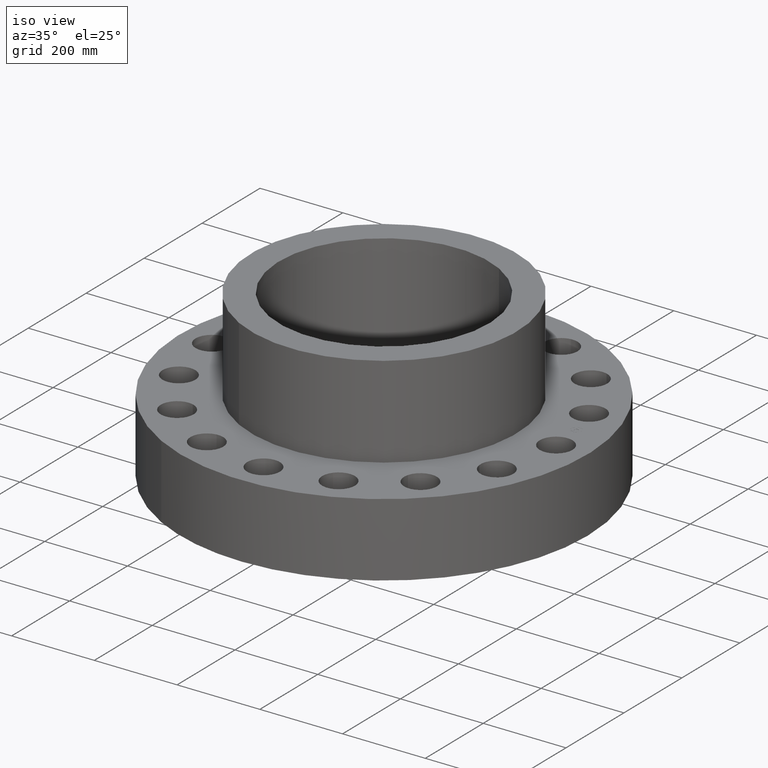
[diagram: clean part render]
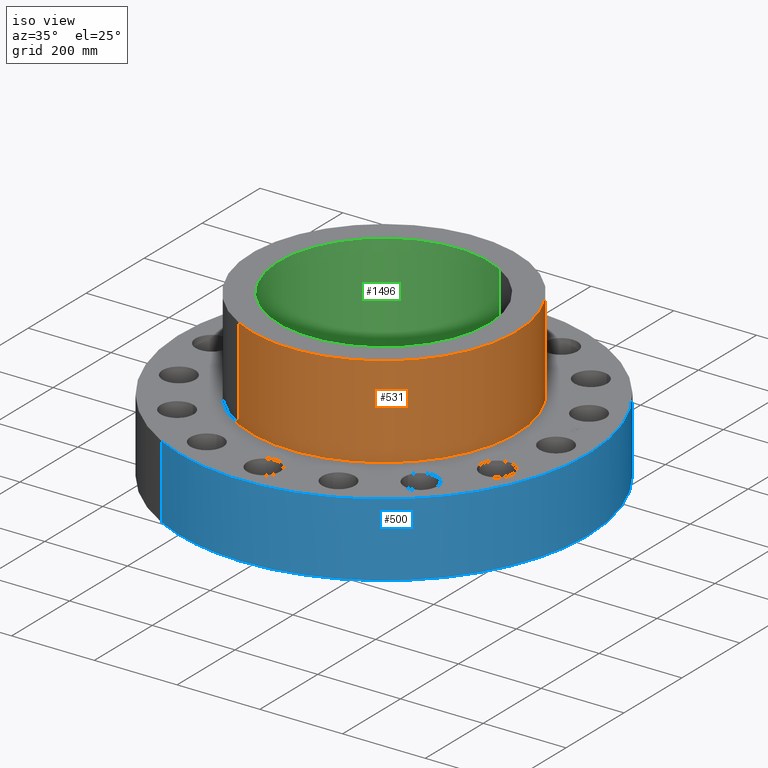
[diagram: same view with three faces highlighted in distinct colors, each labeled with its STEP entity id]
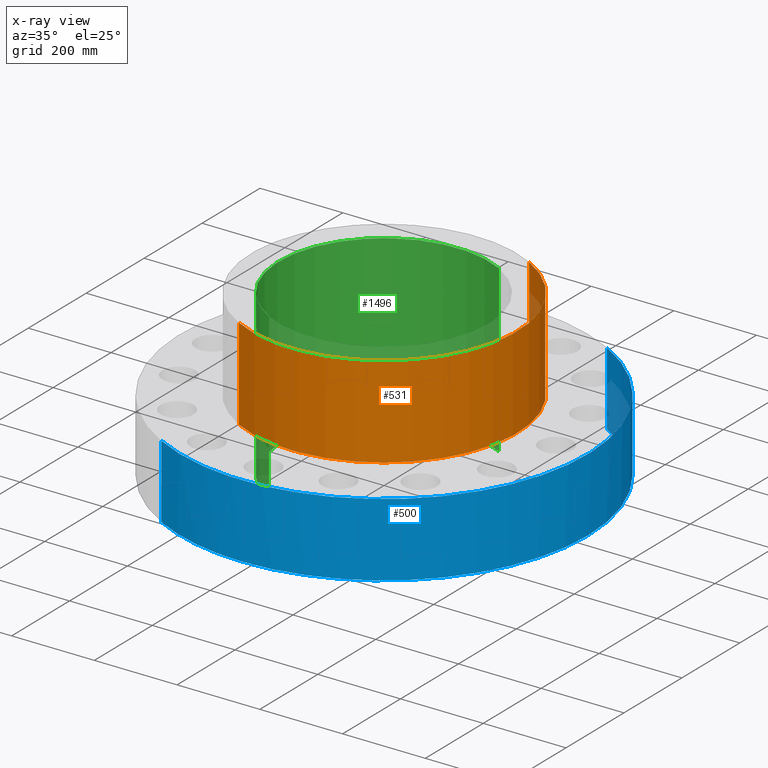
[diagram: x-ray of the same camera — body ghosted, the three highlighted faces saturated]
A machine part, iso view with three faces highlighted in distinct colors.
The next image is the same camera in x-ray (body ghosted, the three faces saturated) — at least one of them is partly hidden behind the body in this view.
Their STEP definitions:

[orange] entity #531 — the highlighted cylindrical surface (partial cylindrical patch) has radius 320.675 mm, axis along (0, 0, -1).
#130=AXIS2_PLACEMENT_3D('Circle Axis2P3D',#128,#129,$) ;
#504=AXIS2_PLACEMENT_3D('Cylinder Axis2P3D',#501,#502,#503) ;
#515=AXIS2_PLACEMENT_3D('Circle Axis2P3D',#513,#514,$) ;
#123=CARTESIAN_POINT('Vertex',(-6.0527474249,-11.0794798439,7.00000000003)) ;
#125=CARTESIAN_POINT('Vertex',(6.0527474249,11.0794798439,7.00000000003)) ;
#128=CARTESIAN_POINT('Axis2P3D Location',(0.,0.,7.00000000003)) ;
#501=CARTESIAN_POINT('Axis2P3D Location',(0.,0.,7.75000000003)) ;
#506=CARTESIAN_POINT('Line Origine',(6.0527474249,11.0794798439,11.375)) ;
#510=CARTESIAN_POINT('Vertex',(6.0527474249,11.0794798439,15.7500000001)) ;
#513=CARTESIAN_POINT('Axis2P3D Location',(0.,0.,15.7500000001)) ;
#517=CARTESIAN_POINT('Vertex',(-6.0527474249,-11.0794798439,15.7500000001)) ;
#520=CARTESIAN_POINT('Line Origine',(-6.0527474249,-11.0794798439,11.375)) ;
#129=DIRECTION('Axis2P3D Direction',(0.,0.,-0.0393700787402)) ;
#502=DIRECTION('Axis2P3D Direction',(0.,0.,-0.0393700787402)) ;
#503=DIRECTION('Axis2P3D XDirection',(-0.0188750212049,-0.0345504945626,0.)) ;
#507=DIRECTION('Vector Direction',(0.,0.,-0.0393700787402)) ;
#514=DIRECTION('Axis2P3D Direction',(0.,0.,-0.0393700787402)) ;
#521=DIRECTION('Vector Direction',(0.,0.,-0.0393700787402)) ;
#508=VECTOR('Line Direction',#507,0.0393700787402) ;
#522=VECTOR('Line Direction',#521,0.0393700787402) ;
#526=ORIENTED_EDGE('',*,*,#132,.F.) ;
#527=ORIENTED_EDGE('',*,*,#512,.T.) ;
#528=ORIENTED_EDGE('',*,*,#519,.T.) ;
#529=ORIENTED_EDGE('',*,*,#524,.F.) ;
#531=ADVANCED_FACE('PartBody',(#530),#505,.T.) ;
#131=CIRCLE('generated circle',#130,12.6250000001) ;
#516=CIRCLE('generated circle',#515,12.6250000001) ;
#505=CYLINDRICAL_SURFACE('generated cylinder',#504,12.6250000001) ;
#132=EDGE_CURVE('',#126,#124,#131,.T.) ;
#512=EDGE_CURVE('',#126,#511,#509,.F.) ;
#519=EDGE_CURVE('',#511,#518,#516,.T.) ;
#524=EDGE_CURVE('',#124,#518,#523,.F.) ;
#525=EDGE_LOOP('',(#526,#527,#528,#529)) ;
#530=FACE_OUTER_BOUND('',#525,.T.) ;
#509=LINE('Line',#506,#508) ;
#523=LINE('Line',#520,#522) ;
#124=VERTEX_POINT('',#123) ;
#126=VERTEX_POINT('',#125) ;
#511=VERTEX_POINT('',#510) ;
#518=VERTEX_POINT('',#517) ;

[blue] entity #500 — the highlighted cylindrical surface (partial cylindrical patch) has radius 492.125 mm, axis along (0, 0, -1).
#99=AXIS2_PLACEMENT_3D('Circle Axis2P3D',#97,#98,$) ;
#429=AXIS2_PLACEMENT_3D('Cylinder Axis2P3D',#426,#427,#428) ;
#475=AXIS2_PLACEMENT_3D('Circle Axis2P3D',#473,#474,$) ;
#482=AXIS2_PLACEMENT_3D('Circle Axis2P3D',#480,#481,$) ;
#489=AXIS2_PLACEMENT_3D('Circle Axis2P3D',#487,#488,$) ;
#97=CARTESIAN_POINT('Axis2P3D Location',(0.,0.,7.00000000003)) ;
#101=CARTESIAN_POINT('Vertex',(9.28886981049,17.0031621367,7.00000000003)) ;
#103=CARTESIAN_POINT('Vertex',(-9.28886981049,-17.0031621367,7.00000000003)) ;
#426=CARTESIAN_POINT('Axis2P3D Location',(0.,0.,7.75000000003)) ;
#437=CARTESIAN_POINT('Vertex',(9.28886981049,17.0031621367,2.23792987641E-015)) ;
#451=CARTESIAN_POINT('Vertex',(-9.28886981049,-17.0031621367,2.23792987641E-015)) ;
#454=CARTESIAN_POINT('Line Origine',(-9.28886981049,-17.0031621367,3.50000000001)) ;
#459=CARTESIAN_POINT('Line Origine',(9.28886981049,17.0031621367,3.50000000001)) ;
#473=CARTESIAN_POINT('Axis2P3D Location',(0.,0.,2.23792987641E-015)) ;
#477=CARTESIAN_POINT('Vertex',(2.26969476889E-014,-19.3750000001,0.)) ;
#480=CARTESIAN_POINT('Axis2P3D Location',(0.,0.,2.23792987641E-015)) ;
#484=CARTESIAN_POINT('Vertex',(19.3750000001,2.23792987641E-014,0.)) ;
#487=CARTESIAN_POINT('Axis2P3D Location',(0.,0.,2.23792987641E-015)) ;
#98=DIRECTION('Axis2P3D Direction',(0.,0.,-0.0393700787402)) ;
#427=DIRECTION('Axis2P3D Direction',(0.,0.,-0.0393700787402)) ;
#428=DIRECTION('Axis2P3D XDirection',(0.0188750212049,0.0345504945626,0.)) ;
#455=DIRECTION('Vector Direction',(0.,0.,-0.0393700787402)) ;
#460=DIRECTION('Vector Direction',(0.,0.,-0.0393700787402)) ;
#474=DIRECTION('Axis2P3D Direction',(0.,0.,-0.0393700787402)) ;
#481=DIRECTION('Axis2P3D Direction',(0.,0.,-0.0393700787402)) ;
#488=DIRECTION('Axis2P3D Direction',(0.,0.,-0.0393700787402)) ;
#456=VECTOR('Line Direction',#455,0.0393700787402) ;
#461=VECTOR('Line Direction',#460,0.0393700787402) ;
#493=ORIENTED_EDGE('',*,*,#479,.F.) ;
#494=ORIENTED_EDGE('',*,*,#486,.F.) ;
#495=ORIENTED_EDGE('',*,*,#491,.F.) ;
#496=ORIENTED_EDGE('',*,*,#463,.T.) ;
#497=ORIENTED_EDGE('',*,*,#105,.T.) ;
#498=ORIENTED_EDGE('',*,*,#458,.F.) ;
#500=ADVANCED_FACE('PartBody',(#499),#430,.T.) ;
#100=CIRCLE('generated circle',#99,19.3750000001) ;
#476=CIRCLE('generated circle',#475,19.3750000001) ;
#483=CIRCLE('generated circle',#482,19.3750000001) ;
#490=CIRCLE('generated circle',#489,19.3750000001) ;
#430=CYLINDRICAL_SURFACE('generated cylinder',#429,19.3750000001) ;
#105=EDGE_CURVE('',#102,#104,#100,.T.) ;
#458=EDGE_CURVE('',#452,#104,#457,.F.) ;
#463=EDGE_CURVE('',#438,#102,#462,.F.) ;
#479=EDGE_CURVE('',#478,#452,#476,.T.) ;
#486=EDGE_CURVE('',#485,#478,#483,.T.) ;
#491=EDGE_CURVE('',#438,#485,#490,.T.) ;
#492=EDGE_LOOP('',(#493,#494,#495,#496,#497,#498)) ;
#499=FACE_OUTER_BOUND('',#492,.T.) ;
#457=LINE('Line',#454,#456) ;
#462=LINE('Line',#459,#461) ;
#102=VERTEX_POINT('',#101) ;
#104=VERTEX_POINT('',#103) ;
#438=VERTEX_POINT('',#437) ;
#452=VERTEX_POINT('',#451) ;
#478=VERTEX_POINT('',#477) ;
#485=VERTEX_POINT('',#484) ;

[green] entity #1496 — the highlighted cylindrical surface (partial cylindrical patch) has radius 254 mm, axis along (0, 0, -1).
#1258=AXIS2_PLACEMENT_3D('Circle Axis2P3D',#1256,#1257,$) ;
#1457=AXIS2_PLACEMENT_3D('Cylinder Axis2P3D',#1454,#1455,#1456) ;
#1487=AXIS2_PLACEMENT_3D('Circle Axis2P3D',#1485,#1486,$) ;
#1256=CARTESIAN_POINT('Axis2P3D Location',(0.,0.,15.7500000001)) ;
#1260=CARTESIAN_POINT('Vertex',(-4.79425538606,-8.77582561894,15.7500000001)) ;
#1262=CARTESIAN_POINT('Vertex',(4.79425538606,8.77582561894,15.7500000001)) ;
#1454=CARTESIAN_POINT('Axis2P3D Location',(0.,0.,7.75000000003)) ;
#1463=CARTESIAN_POINT('Vertex',(-4.79425538606,-8.77582561894,0.)) ;
#1465=CARTESIAN_POINT('Vertex',(4.79425538606,8.77582561894,0.)) ;
#1468=CARTESIAN_POINT('Line Origine',(-4.79425538606,-8.77582561894,7.87500000003)) ;
#1473=CARTESIAN_POINT('Line Origine',(4.79425538606,8.77582561894,7.87500000003)) ;
#1485=CARTESIAN_POINT('Axis2P3D Location',(0.,0.,0.)) ;
#1257=DIRECTION('Axis2P3D Direction',(0.,0.,-0.0393700787402)) ;
#1455=DIRECTION('Axis2P3D Direction',(0.,0.,-0.0393700787402)) ;
#1456=DIRECTION('Axis2P3D XDirection',(-0.0188750212049,-0.0345504945626,0.)) ;
#1469=DIRECTION('Vector Direction',(0.,0.,-0.0393700787402)) ;
#1474=DIRECTION('Vector Direction',(0.,0.,-0.0393700787402)) ;
#1486=DIRECTION('Axis2P3D Direction',(0.,0.,-0.0393700787402)) ;
#1470=VECTOR('Line Direction',#1469,0.0393700787402) ;
#1475=VECTOR('Line Direction',#1474,0.0393700787402) ;
#1491=ORIENTED_EDGE('',*,*,#1489,.F.) ;
#1492=ORIENTED_EDGE('',*,*,#1477,.F.) ;
#1493=ORIENTED_EDGE('',*,*,#1264,.F.) ;
#1494=ORIENTED_EDGE('',*,*,#1472,.T.) ;
#1496=ADVANCED_FACE('PartBody',(#1495),#1458,.F.) ;
#1259=CIRCLE('generated circle',#1258,10.) ;
#1488=CIRCLE('generated circle',#1487,10.) ;
#1458=CYLINDRICAL_SURFACE('generated cylinder',#1457,10.) ;
#1264=EDGE_CURVE('',#1261,#1263,#1259,.T.) ;
#1472=EDGE_CURVE('',#1261,#1464,#1471,.T.) ;
#1477=EDGE_CURVE('',#1263,#1466,#1476,.T.) ;
#1489=EDGE_CURVE('',#1466,#1464,#1488,.F.) ;
#1490=EDGE_LOOP('',(#1491,#1492,#1493,#1494)) ;
#1495=FACE_OUTER_BOUND('',#1490,.T.) ;
#1471=LINE('Line',#1468,#1470) ;
#1476=LINE('Line',#1473,#1475) ;
#1261=VERTEX_POINT('',#1260) ;
#1263=VERTEX_POINT('',#1262) ;
#1464=VERTEX_POINT('',#1463) ;
#1466=VERTEX_POINT('',#1465) ;